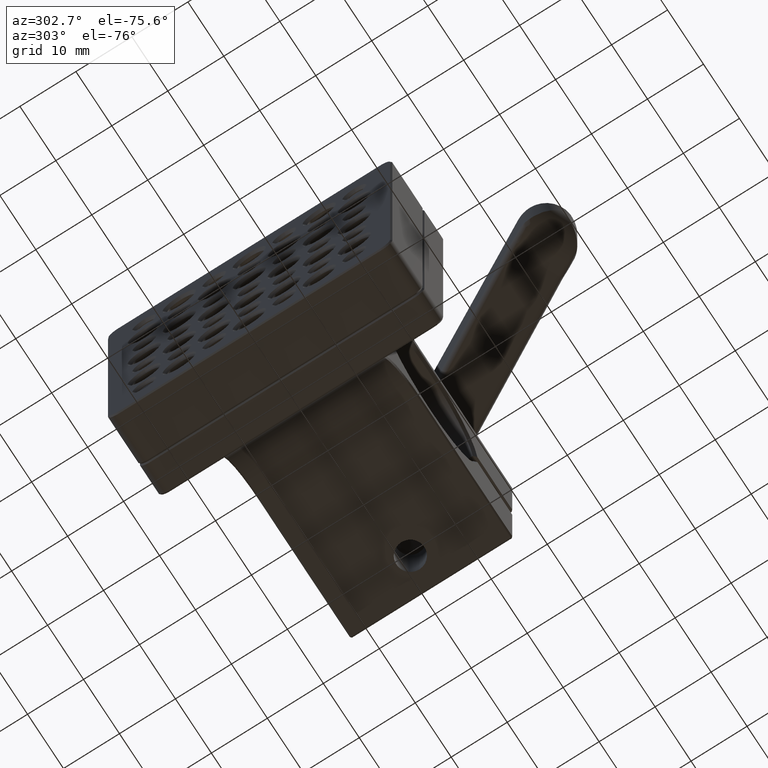
[diagram: clean part render]
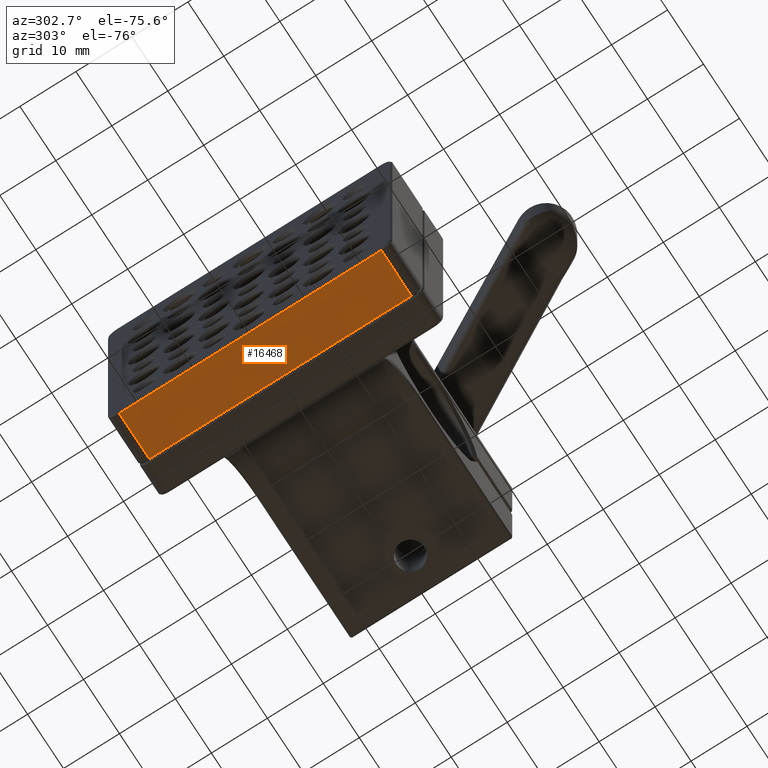
[diagram: same view with one face highlighted and labeled with its STEP entity id]
A machine part, auxiliary view. The second image highlights one B-rep face of the part: STEP entity #16468.
In plain terms, the highlighted planar face has unit normal (0, -0, 1).
Its self-contained STEP definition (entity closure, byte-faithful):
#515 = FACE_OUTER_BOUND ( 'NONE', #10870, .T. ) ;
#1063 = CARTESIAN_POINT ( 'NONE',  ( -4.195000000000006501, -23.39999999999999858, -25.40000000000000213 ) ) ;
#1325 = ORIENTED_EDGE ( 'NONE', *, *, #11518, .T. ) ;
#1531 = ORIENTED_EDGE ( 'NONE', *, *, #4209, .T. ) ;
#3117 = AXIS2_PLACEMENT_3D ( 'NONE', #8663, #10417, #17054 ) ;
#4209 = EDGE_CURVE ( 'NONE', #6204, #6128, #5820, .T. ) ;
#5306 = PLANE ( 'NONE',  #3117 ) ;
#5404 = DIRECTION ( 'NONE',  ( 0.000000000000000000, -1.000000000000000000, -1.365923996832131856E-16 ) ) ;
#5820 = LINE ( 'NONE', #15514, #19725 ) ;
#5872 = VECTOR ( 'NONE', #13905, 1000.000000000000000 ) ;
#5905 = CARTESIAN_POINT ( 'NONE',  ( 4.445000000000000284, -23.39999999999999858, -25.40000000000000213 ) ) ;
#6128 = VERTEX_POINT ( 'NONE', #11862 ) ;
#6204 = VERTEX_POINT ( 'NONE', #13912 ) ;
#7004 = LINE ( 'NONE', #5905, #14472 ) ;
#7261 = CARTESIAN_POINT ( 'NONE',  ( 4.445000000000000284, 23.40000000000000213, -25.39999999999999503 ) ) ;
#7816 = EDGE_CURVE ( 'NONE', #9982, #6204, #20539, .T. ) ;
#7974 = ORIENTED_EDGE ( 'NONE', *, *, #10535, .T. ) ;
#8027 = VERTEX_POINT ( 'NONE', #1063 ) ;
#8663 = CARTESIAN_POINT ( 'NONE',  ( 4.445000000000000284, 25.39999999999999858, -25.39999999999999503 ) ) ;
#9628 = ORIENTED_EDGE ( 'NONE', *, *, #7816, .T. ) ;
#9982 = VERTEX_POINT ( 'NONE', #17197 ) ;
#10417 = DIRECTION ( 'NONE',  ( 0.000000000000000000, -1.365923996832131856E-16, 1.000000000000000000 ) ) ;
#10535 = EDGE_CURVE ( 'NONE', #6128, #8027, #7004, .T. ) ;
#10870 = EDGE_LOOP ( 'NONE', ( #9628, #1531, #7974, #1325 ) ) ;
#11518 = EDGE_CURVE ( 'NONE', #8027, #9982, #20558, .T. ) ;
#11862 = CARTESIAN_POINT ( 'NONE',  ( 4.195000000000006501, -23.39999999999999858, -25.40000000000000213 ) ) ;
#12291 = CARTESIAN_POINT ( 'NONE',  ( -4.195000000000006501, 25.39999999999999858, -25.39999999999999503 ) ) ;
#12439 = DIRECTION ( 'NONE',  ( -1.000000000000000000, 0.000000000000000000, 0.000000000000000000 ) ) ;
#12763 = VECTOR ( 'NONE', #18330, 1000.000000000000000 ) ;
#13905 = DIRECTION ( 'NONE',  ( 1.000000000000000000, -0.000000000000000000, -0.000000000000000000 ) ) ;
#13912 = CARTESIAN_POINT ( 'NONE',  ( 4.195000000000006501, 23.40000000000000213, -25.39999999999999503 ) ) ;
#14472 = VECTOR ( 'NONE', #12439, 1000.000000000000000 ) ;
#15514 = CARTESIAN_POINT ( 'NONE',  ( 4.195000000000006501, -23.39999999999999858, -25.40000000000000213 ) ) ;
#16468 = ADVANCED_FACE ( 'NONE', ( #515 ), #5306, .F. ) ;
#17054 = DIRECTION ( 'NONE',  ( 0.000000000000000000, -1.000000000000000000, -1.365923996832131856E-16 ) ) ;
#17197 = CARTESIAN_POINT ( 'NONE',  ( -4.195000000000006501, 23.40000000000000213, -25.39999999999999503 ) ) ;
#18330 = DIRECTION ( 'NONE',  ( 0.000000000000000000, 1.000000000000000000, 1.365923996832131856E-16 ) ) ;
#19725 = VECTOR ( 'NONE', #5404, 1000.000000000000000 ) ;
#20539 = LINE ( 'NONE', #7261, #5872 ) ;
#20558 = LINE ( 'NONE', #12291, #12763 ) ;